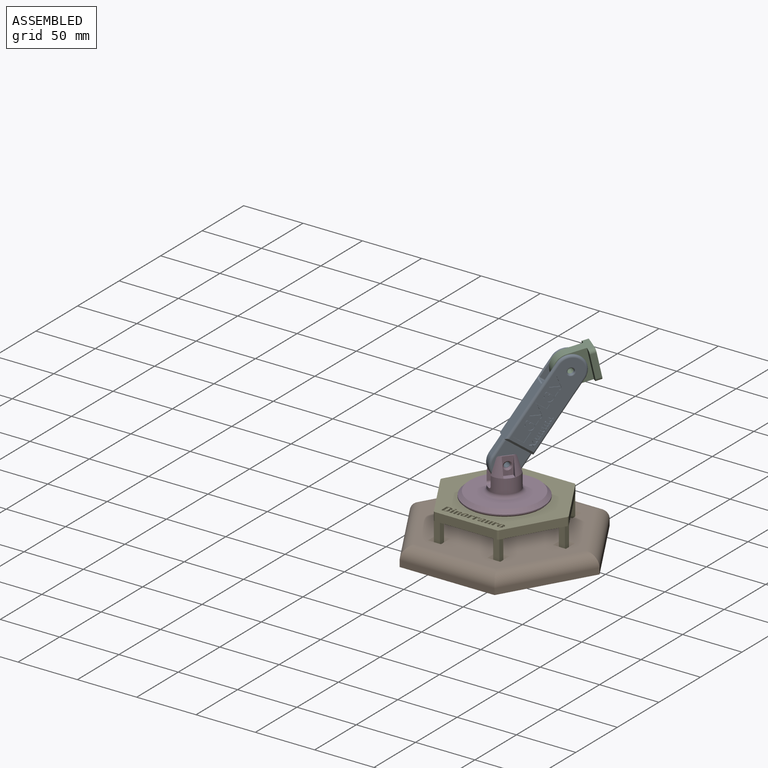
[diagram: assembled view]
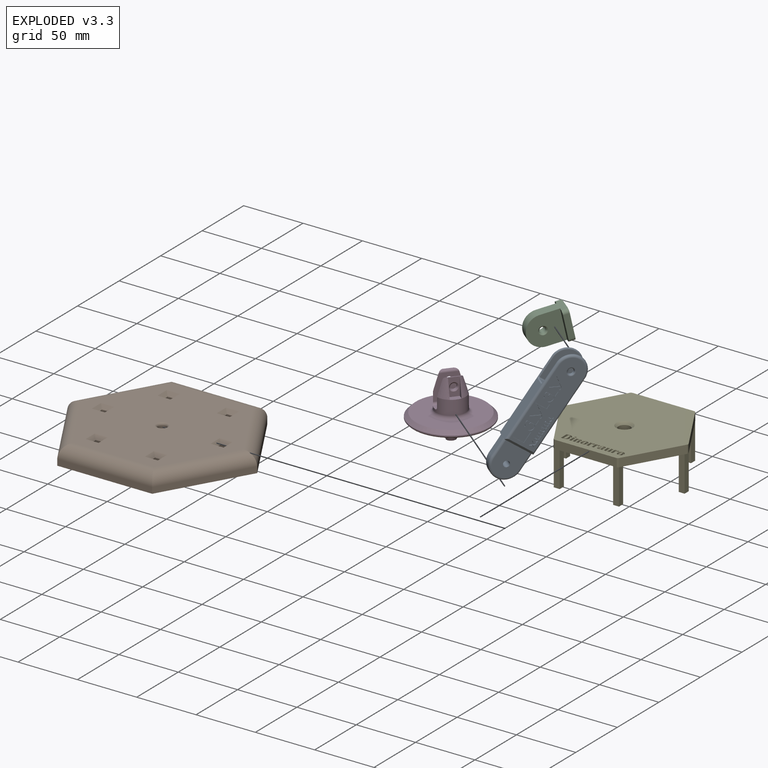
[diagram: exploded view]
GUIDED TOUR — FREECAD ASSEMBLY "Articulated_Artm"

This assembly has 5 components, labeled P0..P4 below (a component is one placed body or linked part; the same part can appear more than once), held together by 4 modeled joints. A joint is a constraint between two components; its type names the relative motion it leaves free:
  FASTENED — locks the two components together rigidly (no relative motion),
  REVOLUTE — leaves rotation about the listed axis free (a hinge).
Axis/direction vectors are unit vectors and 'through' points are millimeter coordinates, both in the assembly's world frame.

MATES
  1. FASTENED [Fixed] "Joint": P1 <-> P4, direction (-1.000, 0.000, 0.000) through (-25.00, -40.80, 0.00) mm
  2. REVOLUTE [Revolute] "Joint001": P3 <-> P4, axis (0.000, 0.000, 1.000) through (0.00, 0.00, 32.50) mm
  3. REVOLUTE [Revolute] "Joint002": P3 <-> P0, axis (-0.778, 0.629, 0.000) through (-4.44, 3.59, 64.73) mm
  4. REVOLUTE [Revolute] "Joint003": P2 <-> P0, axis (0.778, -0.629, 0.000) through (28.79, 35.36, 130.46) mm

ASSEMBLY ORDER
  1. P0 — the base component [order heuristic]
  2. P2 — core [order heuristic]
  3. P3 — core [order heuristic]
  4. P4 [order verified]
  5. P1 [order verified]
Order-tag legend:
  [order verified] — this step's position reverses a verified removal order: the component was checked to insert without passing through the ones already placed.
  [order heuristic] — the first 3 components form the assembly's core: parts whose collision-free extraction could not be verified, listed in mate-graph order.

Of the 5 components, 3 carry a construction recipe — the FreeCAD feature program (sketches with constraints, then the solid features that consume them) that regenerates the part from scratch, quoted from this document or from the linked companion document it references; the rest are supplied as boundary geometry only. The tour below walks the components in assembly order: each is shown spotlighted twice — in the assembled view, then in the exploded view, where a leader line traces a displaced component back to its assembled socket (components that stay in place when exploded have no leader line; saturated green if recipe-attached, orange if geometry-only; every other component desaturated gray) — followed by its recipe or geometry summary and the mates that hold it.
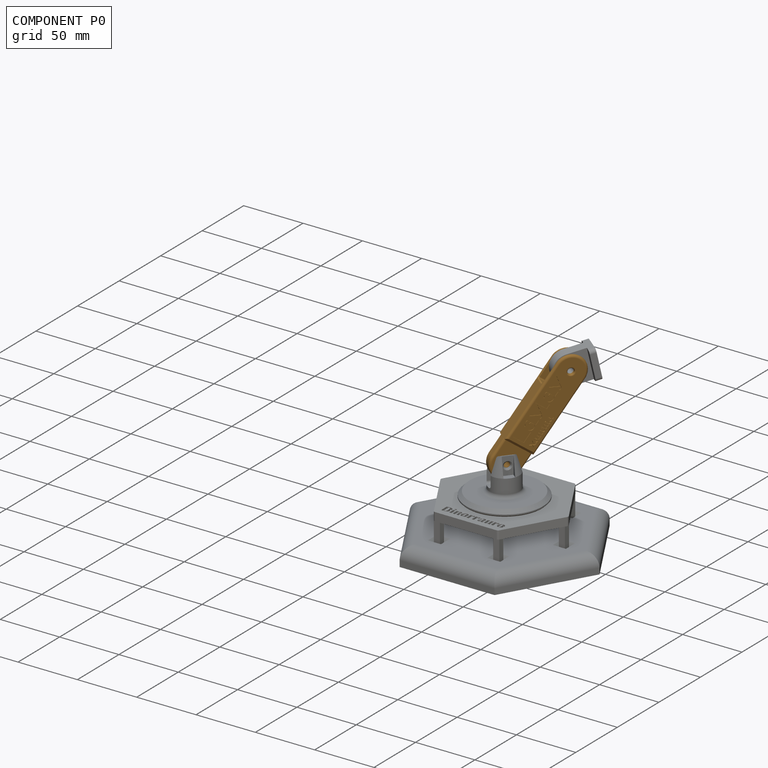
[diagram: component P0 — assembled]
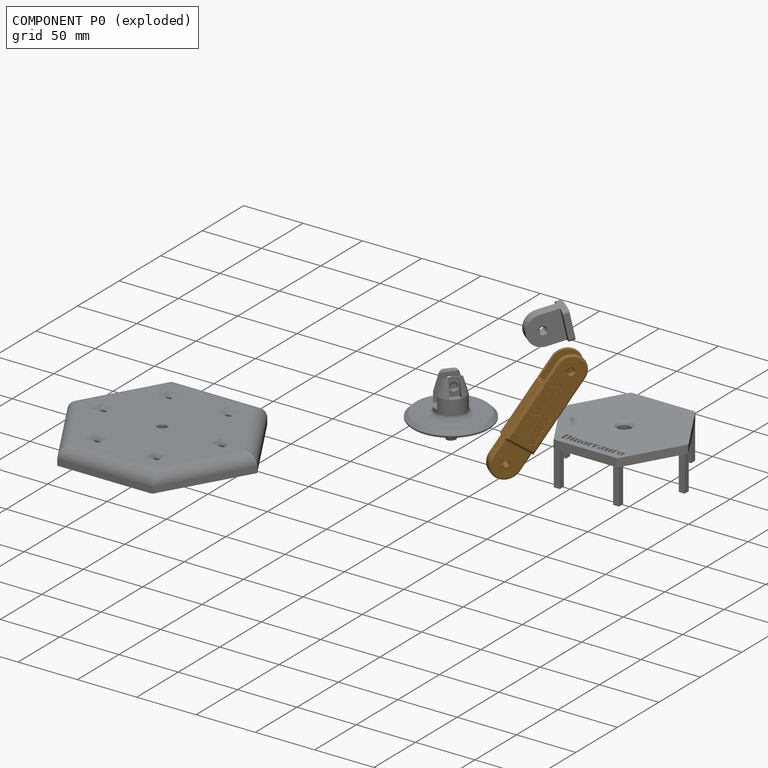
[diagram: component P0 — exploded]
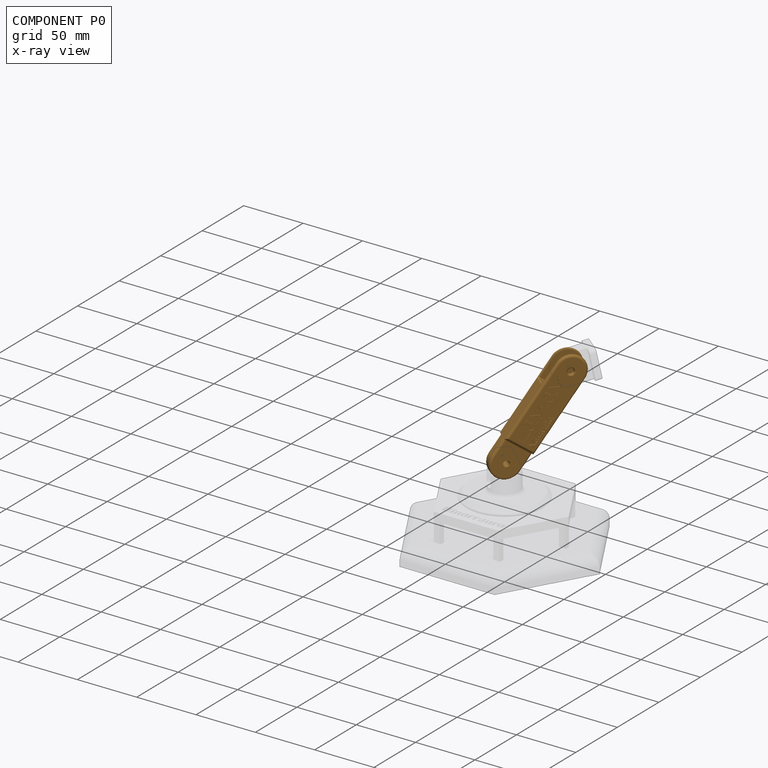
[diagram: component P0 — x-ray view]
COMPONENT P0 — geometry summary ("Arm002"; no construction recipe available for this part):
  bounding box: 90.7 x 60.8 x 52.1 mm
  tessellated surface: 61,146 triangles
  volume: 26161 mm^3 (9% of its bounding box)
Held by: REVOLUTE mate "Joint002" to P3; REVOLUTE mate "Joint003" to P2.
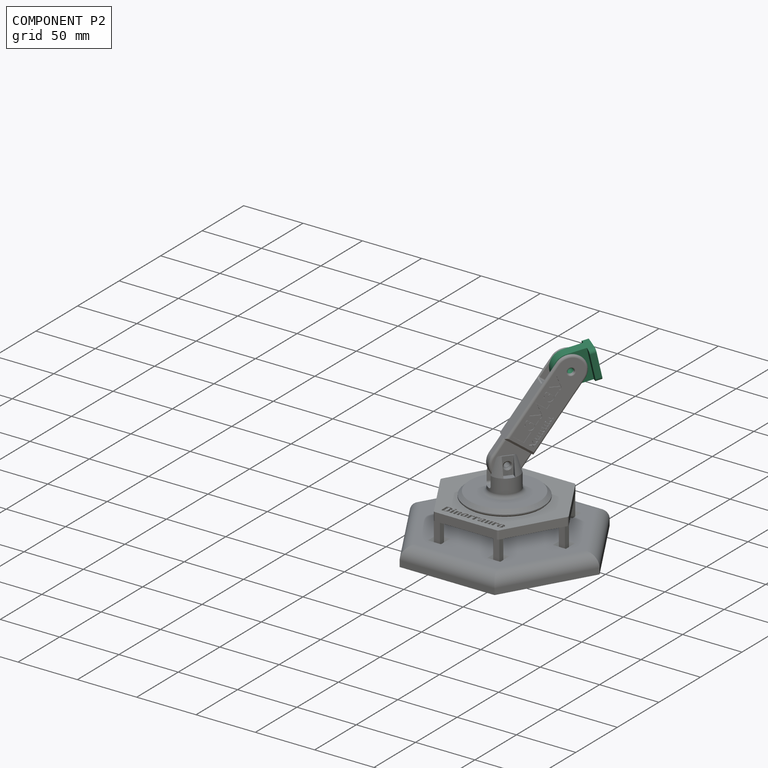
[diagram: component P2 — assembled]
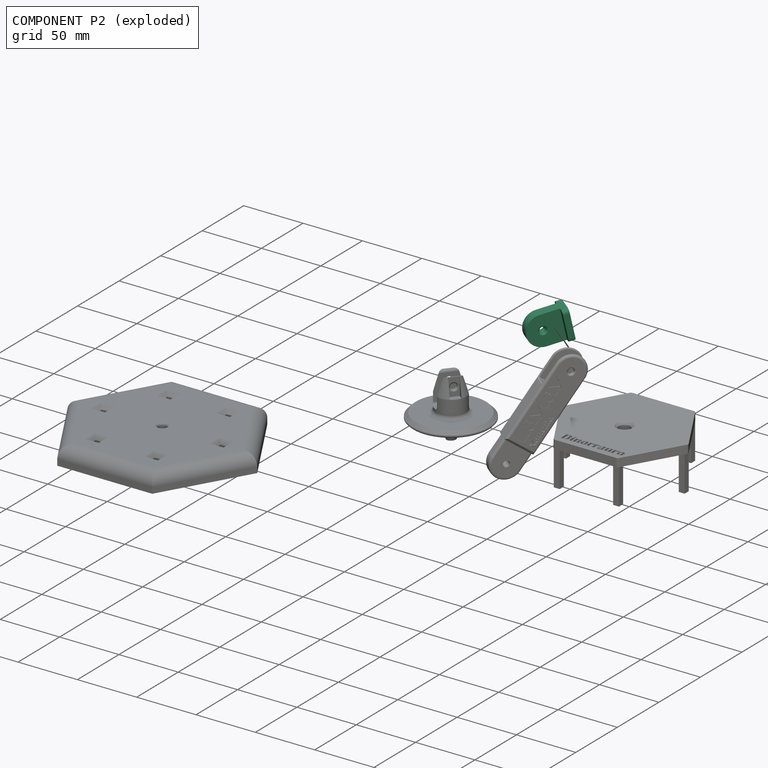
[diagram: component P2 — exploded]
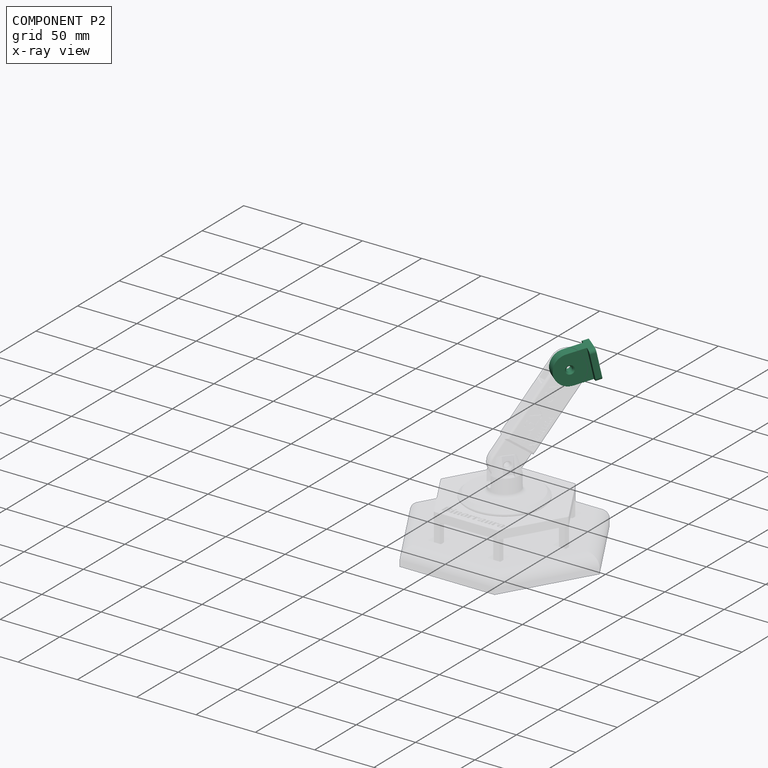
[diagram: component P2 — x-ray view]
COMPONENT P2 — recipe-attached ("Cam_Mount001", modeled in this document).
Held by: REVOLUTE mate "Joint003" to P0.
Construction recipe (the document's own serialized feature program — sketch geometry with constraints, then the solid features built on it; lengths are millimeters unless a unit is written):

FEATURE [Sketcher::SketchObject] Sketch017
  ArcFitTolerance = 1e-06
  AttachmentSupport = -> [YZ_Plane004]
  FullyConstrained = true
  MakeInternals = false
  MapMode = 5
  Placement = pos=(0,0,0) rot=(0.57735,0.57735,0.57735;2.0944rad)
  sketch-geometry (5):
    g0: Circle [constr] CenterX=0 CenterY=0 CenterZ=0 NormalX=0 NormalY=0 NormalZ=1 AngleXU=0 Radius=12.5
    g1: ArcOfCircle CenterX=0 CenterY=0 CenterZ=0 NormalX=0 NormalY=0 NormalZ=1 AngleXU=0 Radius=12.5 StartAngle=3.14159 EndAngle=6.28319
    g2: LineSegment StartX=-12.5 StartY=1.20884e-08 StartZ=0 EndX=-12.5 EndY=15 EndZ=0
    g3: LineSegment StartX=12.5 StartY=4.31804e-06 StartZ=0 EndX=12.5 EndY=15 EndZ=0
    g4: LineSegment StartX=-12.5 StartY=15 StartZ=0 EndX=12.5 EndY=15 EndZ=0
  constraints (14):
    c: Diameter(g0) = 25
    c: Coincident(g0,g-1)
    c: Angle(g1) = 3.14159
    c: Coincident(g1,g0)
    c: PointOnObject(g1,g0)
    c: Distance(g2) = 15
    c: Coincident(g2,g1)
    c: Vertical(g2)
    c: Tangent(g2,g0)
    c: Distance(g3) = 15
    c: Coincident(g3,g1)
    c: Vertical(g3)
    c: Coincident(g4,g2)
    c: Coincident(g4,g3)
FEATURE [PartDesign::Pad] Pad008
  Direction = (1,0,0)
  Length = 9
  Length2 = 10
  Placement = pos=(0,0,0) rot=(1,1,1;2.0944rad)
  Profile = -> Sketch017
  ReferenceAxis = -> Sketch017 [N_Axis]
  Refine = true
  Suppressed = false
  Type = 0
FEATURE [Sketcher::SketchObject] Sketch018
  ArcFitTolerance = 1e-06
  AttachmentSupport = -> [Pad008]
  FullyConstrained = true
  MakeInternals = false
  MapMode = 5
  Placement = pos=(0,-2.58357e-06,15) rot=(0,0,-1;1.5708rad)
  sketch-geometry (6):
    g0: LineSegment [constr] StartX=0 StartY=0 StartZ=0 EndX=0 EndY=4.5 EndZ=0
    g1: LineSegment StartX=-12.5 StartY=-5.5 StartZ=0 EndX=12.5 EndY=-5.5 EndZ=0
    g2: LineSegment StartX=12.5 StartY=-5.5 StartZ=0 EndX=12.5 EndY=14.5 EndZ=0
    g3: LineSegment StartX=12.5 StartY=14.5 StartZ=0 EndX=-12.5 EndY=14.5 EndZ=0
    g4: LineSegment StartX=-12.5 StartY=14.5 StartZ=0 EndX=-12.5 EndY=-5.5 EndZ=0
    g5: GeomPoint [constr] X=0 Y=4.5 Z=0
  constraints (15):
    c: Distance(g0) = 4.5
    c: Coincident(g0,g-1)
    c: PointOnObject(g0,g-2)
    c: Coincident(g1,g2)
    c: Coincident(g2,g3)
    c: Coincident(g3,g4)
    c: Coincident(g4,g1)
    c: Horizontal(g1)
    c: Horizontal(g3)
    c: Vertical(g2)
    c: Vertical(g4)
    c: Symmetric(g3,g1,g5)
    c: Distance(g2,g4) = 25
    c: Distance(g1,g3) = 20
    c: Coincident(g5,g0)
FEATURE [PartDesign::Pad] Pad009
  BaseFeature = -> Pad008
  Direction = (0,-1.72238e-07,1)
  Length = 5
  Length2 = 10
  Placement = pos=(0,0,0) rot=(1,1,1;2.0944rad)
  Profile = -> Sketch018
  ReferenceAxis = -> Sketch018 [N_Axis]
  Refine = true
  Suppressed = false
  Type = 0
FEATURE [PartDesign::Fillet] Fillet011
  Base = -> Pad009 [Edge14,Edge18,Edge19,Edge13]
  BaseFeature = -> Pad009
  Placement = pos=(0,0,0) rot=(1,1,1;2.0944rad)
  Radius = 3
  Refine = true
  SupportTransform = false
  Suppressed = false
  UseAllEdges = false
FEATURE [Sketcher::SketchObject] Sketch019
  ArcFitTolerance = 1e-06
  AttachmentSupport = -> [Fillet011]
  FullyConstrained = true
  MakeInternals = false
  MapMode = 5
  Placement = pos=(0,0,0) rot=(0.57735,0.57735,-0.57735;4.18879rad)
  sketch-geometry (1):
    g0: Circle CenterX=0 CenterY=0 CenterZ=0 NormalX=0 NormalY=0 NormalZ=1 AngleXU=0 Radius=2.5
  constraints (2):
    c: Diameter(g0) = 5
    c: Coincident(g0,g-1)
FEATURE [PartDesign::Pocket] Pocket009
  BaseFeature = -> Fillet011
  Direction = (1,0,0)
  Length = 13
  Length2 = 5
  Placement = pos=(0,0,0) rot=(1,1,1;2.0944rad)
  Profile = -> Sketch019
  ReferenceAxis = -> Sketch019 [N_Axis]
  Refine = true
  Suppressed = false
  Type = 0
FEATURE [Sketcher::SketchObject] Sketch020
  ArcFitTolerance = 1e-06
  AttachmentSupport = -> [Pocket009]
  FullyConstrained = true
  MakeInternals = false
  MapMode = 5
  Placement = pos=(0,-3.44476e-06,20) rot=(0,0,-1;1.5708rad)
  sketch-geometry (7):
    g0: LineSegment [constr] StartX=0 StartY=0 StartZ=0 EndX=0 EndY=4.5 EndZ=0
    g1: LineSegment [constr] StartX=-12.5 StartY=-5.5 StartZ=0 EndX=12.5 EndY=-5.5 EndZ=0
    g2: LineSegment [constr] StartX=12.5 StartY=-5.5 StartZ=0 EndX=12.5 EndY=14.5 EndZ=0
    g3: LineSegment [constr] StartX=12.5 StartY=14.5 StartZ=0 EndX=-12.5 EndY=14.5 EndZ=0
    g4: LineSegment [constr] StartX=-12.5 StartY=14.5 StartZ=0 EndX=-12.5 EndY=-5.5 EndZ=0
    g5: GeomPoint [constr] X=0 Y=4.5 Z=0
    g6: Circle CenterX=0 CenterY=4.5 CenterZ=0 NormalX=0 NormalY=0 NormalZ=1 AngleXU=0 Radius=1.5
  constraints (17):
    c: Distance(g0) = 4.5
    c: Coincident(g0,g-1)
    c: PointOnObject(g0,g-2)
    c: Coincident(g1,g2)
    c: Coincident(g2,g3)
    c: Coincident(g3,g4)
    c: Coincident(g4,g1)
    c: Horizontal(g1)
    c: Horizontal(g3)
    c: Vertical(g2)
    c: Vertical(g4)
    c: Symmetric(g3,g1,g5)
    c: Distance(g2,g4) = 25
    c: Distance(g1,g3) = 20
    c: Coincident(g5,g0)
    c: Diameter(g6) = 3
    c: Coincident(g6,g0)
FEATURE [PartDesign::Pocket] Pocket010
  BaseFeature = -> Pocket009
  Direction = (0,1.72238e-07,-1)
  Length = 5
  Length2 = 5
  Placement = pos=(0,0,0) rot=(1,1,1;2.0944rad)
  Profile = -> Sketch020
  ReferenceAxis = -> Sketch020 [N_Axis]
  Refine = true
  Suppressed = false
  Type = 0
FEATURE [PartDesign::Chamfer] Chamfer008
  Angle = 45
  Base = -> Pocket010 [Edge23]
  BaseFeature = -> Pocket010
  ChamferType = 0
  FlipDirection = false
  Placement = pos=(0,0,0) rot=(1,1,1;2.0944rad)
  Refine = true
  Size = 1
  Size2 = 1
  SupportTransform = false
  Suppressed = false
  UseAllEdges = false
FEATURE [PartDesign::Chamfer] Chamfer009
  Angle = 45
  Base = -> Chamfer008 [Edge43,Edge45]
  BaseFeature = -> Chamfer008
  ChamferType = 0
  FlipDirection = false
  Placement = pos=(0,0,0) rot=(1,1,1;2.0944rad)
  Refine = true
  Size = 1
  Size2 = 1
  SupportTransform = false
  Suppressed = false
  UseAllEdges = false
FEATURE [PartDesign::Body] Body004  label="Cam_Mount"
  AllowCompound = false
  Group = -> [Sketch017,Pad008,Sketch018,Pad009,Fillet011,Sketch019,Pocket009,Sketch020,Pocket010,Chamfer008,Chamfer009]
  Origin = -> Origin004
  Placement = pos=(-4.5,0,140) rot=(0,0,1;0rad)
  Tip = -> Chamfer009
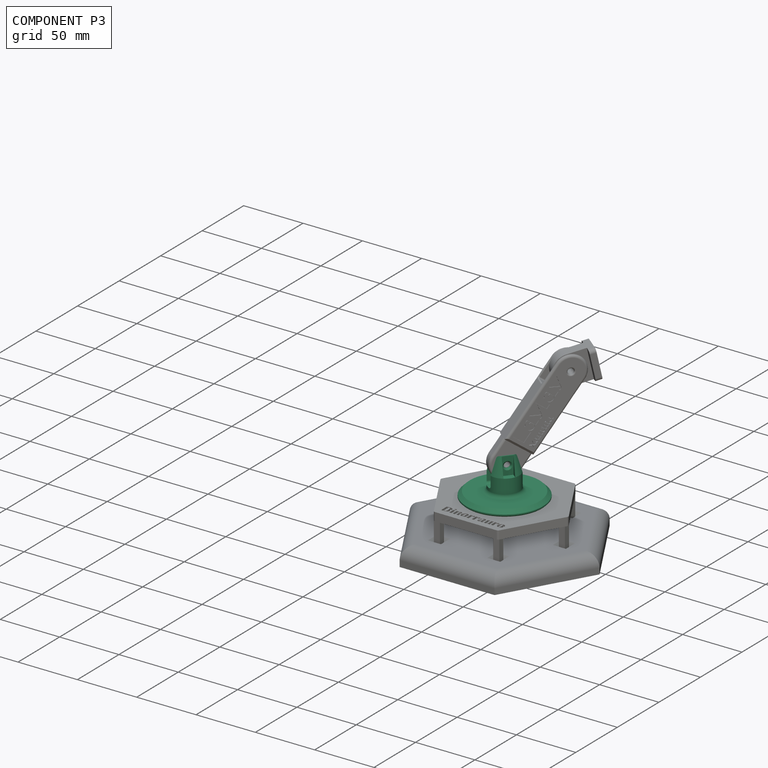
[diagram: component P3 — assembled]
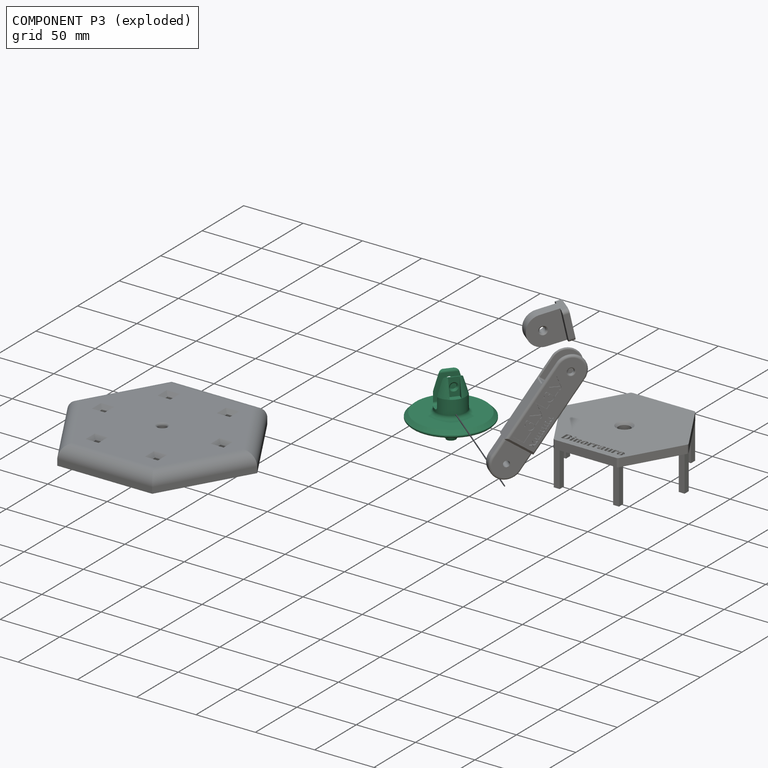
[diagram: component P3 — exploded]
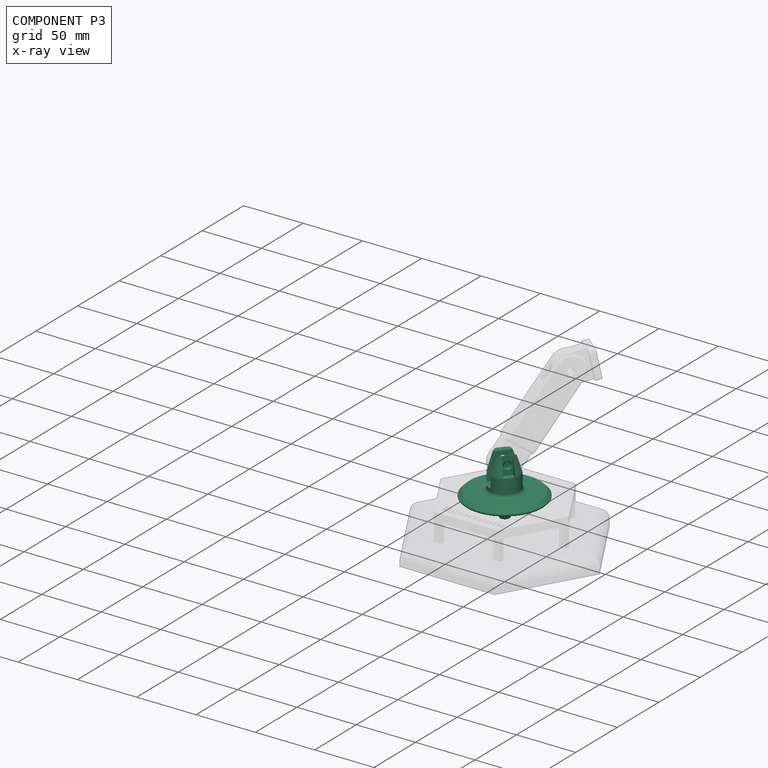
[diagram: component P3 — x-ray view]
COMPONENT P3 — recipe-attached ("Shoulder001", modeled in this document).
Held by: REVOLUTE mate "Joint001" to P4; REVOLUTE mate "Joint002" to P0.
Construction recipe (the document's own serialized feature program — sketch geometry with constraints, then the solid features built on it; lengths are millimeters unless a unit is written):

FEATURE [Sketcher::SketchObject] Sketch005
  ArcFitTolerance = 1e-06
  AttachmentSupport = -> [XY_Plane002]
  FullyConstrained = true
  MakeInternals = false
  MapMode = 5
  sketch-geometry (1):
    g0: Circle CenterX=0 CenterY=0 CenterZ=0 NormalX=0 NormalY=0 NormalZ=1 AngleXU=0 Radius=4
  constraints (2):
    c: Diameter(g0) = 8
    c: Coincident(g0,g-1)
FEATURE [PartDesign::Pad] Pad003
  Direction = (0,0,1)
  Length = 10
  Length2 = 10
  Profile = -> Sketch005
  ReferenceAxis = -> Sketch005 [N_Axis]
  Refine = true
  Suppressed = false
  Type = 0
FEATURE [Sketcher::SketchObject] Sketch006
  ArcFitTolerance = 1e-06
  AttachmentSupport = -> [Pad003]
  FullyConstrained = true
  MakeInternals = false
  MapMode = 5
  Placement = pos=(0,0,0) rot=(1,0,0;3.14159rad)
  sketch-geometry (10):
    g0: Circle [constr] CenterX=0 CenterY=0 CenterZ=0 NormalX=0 NormalY=0 NormalZ=1 AngleXU=0 Radius=6
    g1: LineSegment [constr] StartX=4.47214 StartY=-4 StartZ=0 EndX=4.47214 EndY=4 EndZ=0
    g2: LineSegment [constr] StartX=4.47214 StartY=4 StartZ=0 EndX=-4.47214 EndY=4 EndZ=0
    g3: LineSegment [constr] StartX=-4.47214 StartY=4 StartZ=0 EndX=-4.47214 EndY=-4 EndZ=0
    g4: LineSegment [constr] StartX=-4.47214 StartY=-4 StartZ=0 EndX=4.47214 EndY=-4 EndZ=0
    g5: GeomPoint [constr] X=0 Y=0 Z=0
    g6: ArcOfCircle CenterX=0 CenterY=2e-16 CenterZ=0 NormalX=0 NormalY=0 NormalZ=1 AngleXU=0 Radius=6 StartAngle=2.41186 EndAngle=3.87132
    g7: ArcOfCircle CenterX=0 CenterY=2e-16 CenterZ=0 NormalX=0 NormalY=0 NormalZ=1 AngleXU=0 Radius=6 StartAngle=5.55346 EndAngle=7.01291
    g8: LineSegment StartX=-4.47214 StartY=4 StartZ=0 EndX=4.47214 EndY=4 EndZ=0
    g9: LineSegment StartX=-4.47214 StartY=-4 StartZ=0 EndX=4.47214 EndY=-4 EndZ=0
  constraints (24):
    c: Diameter(g0) = 12
    c: Coincident(g0,g-1)
    c: Coincident(g1,g2)
    c: Coincident(g2,g3)
    c: Coincident(g3,g4)
    c: Coincident(g4,g1)
    c: Vertical(g1)
    c: Vertical(g3)
    c: Horizontal(g2)
    c: Horizontal(g4)
    c: Symmetric(g3,g1,g5)
    c: Coincident(g5,g0)
    c: PointOnObject(g2,g0)
    c: DistanceY(g3,g3) = 8
    c: Coincident(g7,g6)
    c: Coincident(g7,g1)
    c: Coincident(g7,g1)
    c: Coincident(g9,g6)
    c: Coincident(g9,g1)
    c: Horizontal(g9)
    c: Coincident(g2,g6)
    c: Coincident(g2,g8)
    c: Coincident(g1,g8)
    c: Radius(g6) = 6
FEATURE [PartDesign::Pad] Pad004
  BaseFeature = -> Pad003
  Direction = (0,0,-1)
  Length = 5
  Length2 = 10
  Profile = -> Sketch006
  ReferenceAxis = -> Sketch006 [N_Axis]
  Refine = true
  Suppressed = false
  Type = 0
FEATURE [PartDesign::Chamfer] Chamfer002
  Angle = 26
  Base = -> Pad004 [Edge19,Edge16]
  BaseFeature = -> Pad004
  ChamferType = 2
  FlipDirection = false
  Refine = true
  Size = 4
  Size2 = 1
  SupportTransform = false
  Suppressed = false
  UseAllEdges = false
FEATURE [Sketcher::SketchObject] Sketch007
  ArcFitTolerance = 1e-06
  AttachmentSupport = -> [Chamfer002]
  FullyConstrained = true
  MakeInternals = false
  MapMode = 5
  Placement = pos=(0,0,-5) rot=(1,0,0;3.14159rad)
  sketch-geometry (5):
    g0: LineSegment StartX=-1 StartY=-4.5 StartZ=0 EndX=1 EndY=-4.5 EndZ=0
    g1: LineSegment StartX=1 StartY=-4.5 StartZ=0 EndX=1 EndY=4.5 EndZ=0
    g2: LineSegment StartX=1 StartY=4.5 StartZ=0 EndX=-1 EndY=4.5 EndZ=0
    g3: LineSegment StartX=-1 StartY=4.5 StartZ=0 EndX=-1 EndY=-4.5 EndZ=0
    g4: GeomPoint [constr] X=0 Y=0 Z=0
  constraints (12):
    c: Coincident(g0,g1)
    c: Coincident(g1,g2)
    c: Coincident(g2,g3)
    c: Coincident(g3,g0)
    c: Horizontal(g0)
    c: Horizontal(g2)
    c: Vertical(g1)
    c: Vertical(g3)
    c: Symmetric(g2,g0,g4)
    c: Distance(g1,g3) = 2
    c: Distance(g0,g2) = 9
    c: Coincident(g4,g-1)
FEATURE [PartDesign::Pocket] Pocket002
  BaseFeature = -> Chamfer002
  Direction = (0,0,1)
  Length = 12
  Length2 = 5
  Profile = -> Sketch007
  ReferenceAxis = -> Sketch007 [N_Axis]
  Refine = true
  Suppressed = false
  Type = 0
FEATURE [Sketcher::SketchObject] Sketch008
  ArcFitTolerance = 1e-06
  AttachmentSupport = -> [Pocket002]
  FullyConstrained = true
  MakeInternals = false
  MapMode = 5
  Placement = pos=(0,0,10) rot=(0,0,1;0rad)
  sketch-geometry (1):
    g0: Circle CenterX=0 CenterY=0 CenterZ=0 NormalX=0 NormalY=0 NormalZ=1 AngleXU=0 Radius=32.5
  constraints (2):
    c: Diameter(g0) = 65
    c: Coincident(g0,g-1)
FEATURE [PartDesign::Pad] Pad005
  BaseFeature = -> Pocket002
  Direction = (0,0,1)
  Length = 5
  Length2 = 10
  Profile = -> Sketch008
  ReferenceAxis = -> Sketch008 [N_Axis]
  Refine = true
  Suppressed = false
  Type = 0
FEATURE [PartDesign::Chamfer] Chamfer003
  Angle = 45
  Base = -> Pad005 [Edge48]
  BaseFeature = -> Pad005
  ChamferType = 0
  FlipDirection = false
  Refine = true
  Size = 3
  Size2 = 1
  SupportTransform = false
  Suppressed = false
  UseAllEdges = false
FEATURE [PartDesign::Chamfer] Chamfer004
  Angle = 45
  Base = -> Chamfer003 [Edge3]
  BaseFeature = -> Chamfer003
  ChamferType = 0
  FlipDirection = false
  Refine = true
  Size = 1
  Size2 = 1
  SupportTransform = false
  Suppressed = false
  UseAllEdges = false
FEATURE [Sketcher::SketchObject] Sketch009
  ArcFitTolerance = 1e-06
  AttachmentSupport = -> [Chamfer004]
  FullyConstrained = true
  MakeInternals = false
  MapMode = 5
  Placement = pos=(0,0,15) rot=(0,0,1;0rad)
  sketch-geometry (1):
    g0: Circle CenterX=0 CenterY=0 CenterZ=0 NormalX=0 NormalY=0 NormalZ=1 AngleXU=0 Radius=12.5
  constraints (2):
    c: Diameter(g0) = 25
    c: Coincident(g0,g-1)
FEATURE [PartDesign::Pad] Pad006
  BaseFeature = -> Chamfer004
  Direction = (0,0,1)
  Length = 30
  Length2 = 10
  Profile = -> Sketch009
  ReferenceAxis = -> Sketch009 [N_Axis]
  Refine = true
  Suppressed = false
  Type = 0
FEATURE [PartDesign::Chamfer] Chamfer005
  Angle = 15
  Base = -> Pad006 [Edge21]
  BaseFeature = -> Pad006
  ChamferType = 2
  FlipDirection = false
  Refine = true
  Size = 15
  Size2 = 1
  SupportTransform = false
  Suppressed = false
  UseAllEdges = false
FEATURE [Sketcher::SketchObject] Sketch010
  ArcFitTolerance = 1e-06
  AttachmentSupport = -> [Chamfer005]
  FullyConstrained = true
  MakeInternals = false
  MapMode = 5
  Placement = pos=(0,0,45) rot=(0,0,1;0rad)
  sketch-geometry (5):
    g0: LineSegment StartX=-5 StartY=-14 StartZ=0 EndX=5 EndY=-14 EndZ=0
    g1: LineSegment StartX=5 StartY=-14 StartZ=0 EndX=5 EndY=14 EndZ=0
    g2: LineSegment StartX=5 StartY=14 StartZ=0 EndX=-5 EndY=14 EndZ=0
    g3: LineSegment StartX=-5 StartY=14 StartZ=0 EndX=-5 EndY=-14 EndZ=0
    g4: GeomPoint [constr] X=0 Y=0 Z=0
  constraints (12):
    c: Coincident(g0,g1)
    c: Coincident(g1,g2)
    c: Coincident(g2,g3)
    c: Coincident(g3,g0)
    c: Horizontal(g0)
    c: Horizontal(g2)
    c: Vertical(g1)
    c: Vertical(g3)
    c: Symmetric(g2,g0,g4)
    c: Distance(g1,g3) = 10
    c: Distance(g0,g2) = 28
    c: Coincident(g4,g-1)
FEATURE [PartDesign::Pocket] Pocket003
  BaseFeature = -> Chamfer005
  Direction = (0,0,-1)
  Length = 25
  Length2 = 5
  Profile = -> Sketch010
  ReferenceAxis = -> Sketch010 [N_Axis]
  Refine = true
  Suppressed = false
  Type = 0
FEATURE [PartDesign::Fillet] Fillet003
  Base = -> Pocket003 [Edge18,Edge17]
  BaseFeature = -> Pocket003
  Radius = 2
  Refine = true
  SupportTransform = false
  Suppressed = false
  UseAllEdges = false
FEATURE [PartDesign::Fillet] Fillet004
  Base = -> Fillet003 [Edge7]
  BaseFeature = -> Fillet003
  Radius = 3
  Refine = true
  SupportTransform = false
  Suppressed = false
  UseAllEdges = false
FEATURE [PartDesign::Fillet] Fillet005
  Base = -> Fillet004 [Edge29,Edge23]
  BaseFeature = -> Fillet004
  Radius = 2
  Refine = true
  SupportTransform = false
  Suppressed = false
  UseAllEdges = false
FEATURE [Sketcher::SketchObject] Sketch011
  ArcFitTolerance = 1e-06
  AttachmentSupport = -> [Fillet005]
  FullyConstrained = true
  MakeInternals = false
  MapMode = 5
  Placement = pos=(0,0,45) rot=(0,0,1;0rad)
  sketch-geometry (10):
    g0: LineSegment StartX=-13.4315 StartY=-4.24781 StartZ=0 EndX=-7.43145 EndY=-4.24781 EndZ=0
    g1: LineSegment StartX=-7.43145 StartY=-4.24781 StartZ=0 EndX=-7.43145 EndY=4.24781 EndZ=0
    g2: LineSegment StartX=-7.43145 StartY=4.24781 StartZ=0 EndX=-13.4315 EndY=4.24781 EndZ=0
    g3: LineSegment StartX=-13.4315 StartY=4.24781 StartZ=0 EndX=-13.4315 EndY=-4.24781 EndZ=0
    g4: GeomPoint [constr] X=-10.4315 Y=0 Z=0
    g5: LineSegment StartX=13.4315 StartY=4.24781 StartZ=0 EndX=7.43145 EndY=4.24781 EndZ=0
    g6: LineSegment StartX=7.43145 StartY=4.24781 StartZ=0 EndX=7.43145 EndY=-4.25219 EndZ=0
    g7: LineSegment StartX=7.43145 StartY=-4.25219 StartZ=0 EndX=13.4315 EndY=-4.25219 EndZ=0
    g8: LineSegment StartX=13.4315 StartY=-4.25219 StartZ=0 EndX=13.4315 EndY=4.24781 EndZ=0
    g9: GeomPoint [constr] X=10.4315 Y=-0.00219 Z=0
  constraints (26):
    c: Coincident(g0,g1)
    c: Coincident(g1,g2)
    c: Coincident(g2,g3)
    c: Coincident(g3,g0)
    c: Horizontal(g0)
    c: Horizontal(g2)
    c: Vertical(g1)
    c: Vertical(g3)
    c: Symmetric(g2,g0,g4)
    c: Distance(g1,g3) = 6
    c: PointOnObject(g4,g-1)
    c: DistanceX(g1) = -7.43145
    c: DistanceY(g1) = 4.24781
    c: Coincident(g5,g6)
    c: Coincident(g6,g7)
    c: Coincident(g7,g8)
    c: Coincident(g8,g5)
    c: Horizontal(g5)
    c: Horizontal(g7)
    c: Vertical(g6)
    c: Vertical(g8)
    c: Symmetric(g7,g5,g9)
    c: Distance(g6,g8) = 6
    c: DistanceX(g5) = 7.43145
    c: DistanceY(g5) = 4.24781
    c: DistanceY(g8,g8) = 8.5
FEATURE [PartDesign::Pocket] Pocket004
  BaseFeature = -> Fillet005
  Direction = (0,0,-1)
  Length = 15
  Length2 = 5
  Profile = -> Sketch011
  ReferenceAxis = -> Sketch011 [N_Axis]
  Refine = true
  Suppressed = false
  Type = 0
FEATURE [Sketcher::SketchObject] Sketch012
  ArcFitTolerance = 1e-06
  AttachmentSupport = -> [Pocket004]
  FullyConstrained = true
  MakeInternals = false
  MapMode = 5
  Placement = pos=(7.43145,0,0) rot=(0.57735,0.57735,0.57735;2.0944rad)
  sketch-geometry (1):
    g0: Circle CenterX=0 CenterY=37.4232 CenterZ=0 NormalX=0 NormalY=0 NormalZ=1 AngleXU=0 Radius=2.5
  constraints (3):
    c: Diameter(g0) = 5
    c: PointOnObject(g0,g-2)
    c: DistanceY(g0) = 37.4232
FEATURE [PartDesign::Pocket] Pocket005
  BaseFeature = -> Pocket004
  Direction = (-1,0,0)
  Length = 23
  Length2 = 5
  Profile = -> Sketch012
  ReferenceAxis = -> Sketch012 [N_Axis]
  Refine = true
  Suppressed = false
  Type = 0
FEATURE [PartDesign::Chamfer] Chamfer006
  Angle = 45
  Base = -> Pocket005 [Edge65,Edge16]
  BaseFeature = -> Pocket005
  ChamferType = 0
  FlipDirection = false
  Refine = true
  Size = 1
  Size2 = 1
  SupportTransform = false
  Suppressed = false
  UseAllEdges = false
FEATURE [PartDesign::Body] Body002  label="Shoulder"
  AllowCompound = false
  Group = -> [Sketch005,Pad003,Sketch006,Pad004,Chamfer002,Sketch007,Pocket002,Sketch008,Pad005,Chamfer003,Chamfer004,Sketch009,Pad006,Chamfer005,Sketch010,Pocket003,Fillet003,Fillet004,Fillet005,Sketch011,Pocket004,Sketch012,Pocket005,Chamfer006]
  Origin = -> Origin002
  Placement = pos=(0,0,27) rot=(0,0,1;0rad)
  Tip = -> Chamfer006
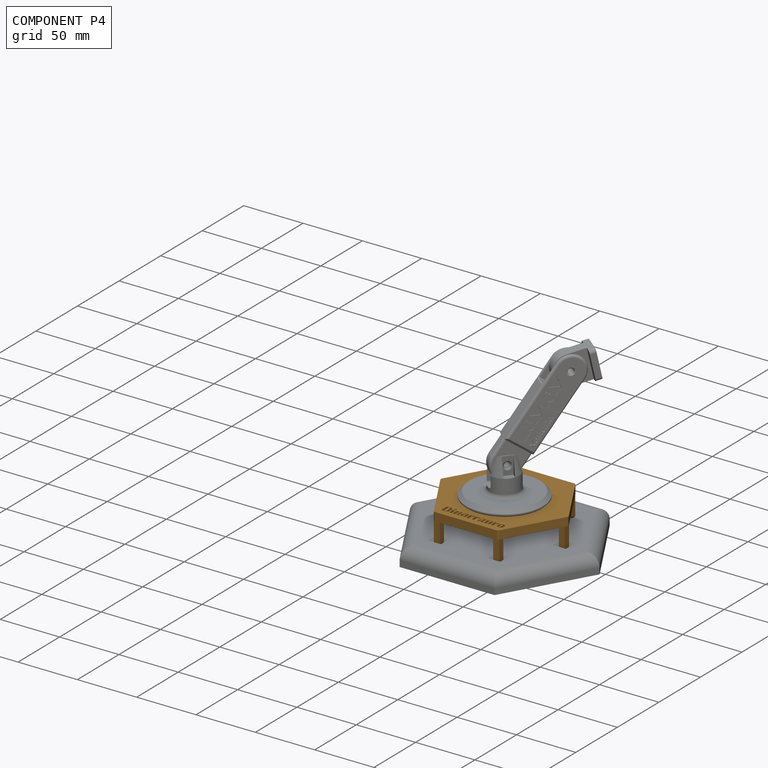
[diagram: component P4 — assembled]
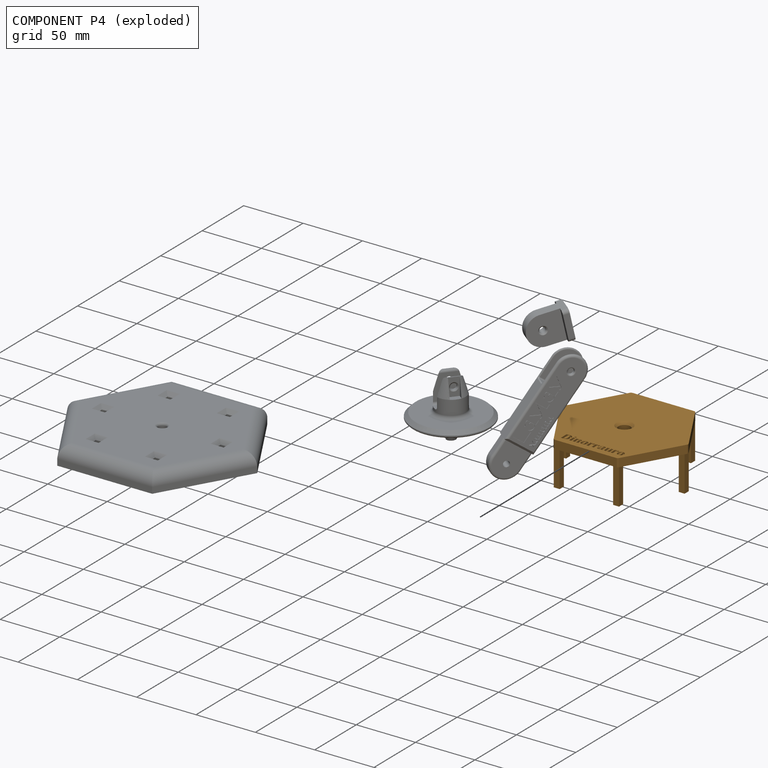
[diagram: component P4 — exploded]
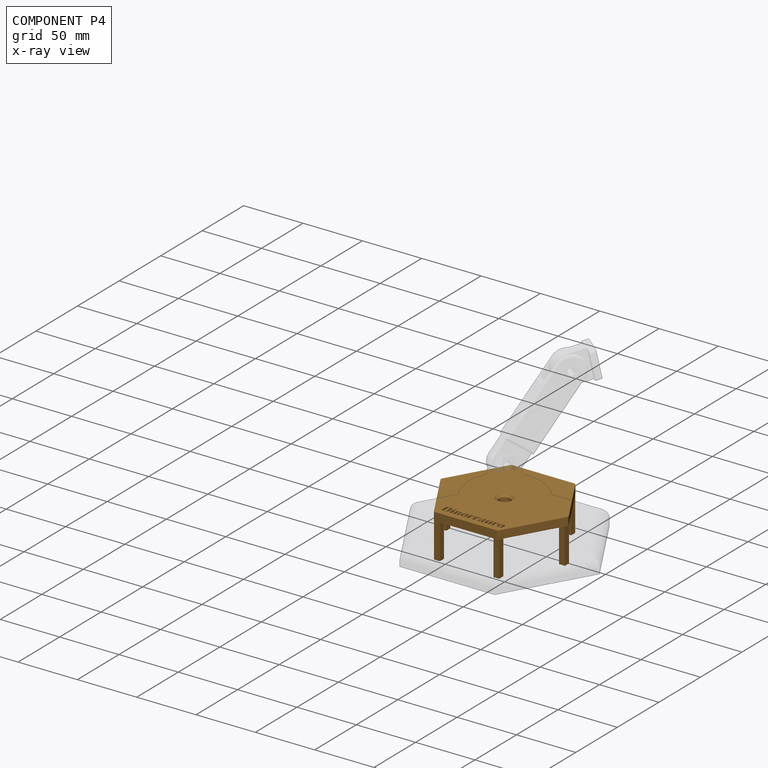
[diagram: component P4 — x-ray view]
COMPONENT P4 — geometry summary ("Swivel001"; no construction recipe available for this part):
  bounding box: 107.4 x 93.5 x 37.0 mm
  tessellated surface: 12,354 triangles
  volume: 56641 mm^3 (15% of its bounding box)
Held by: FASTENED mate "Joint" to P1; REVOLUTE mate "Joint001" to P3.
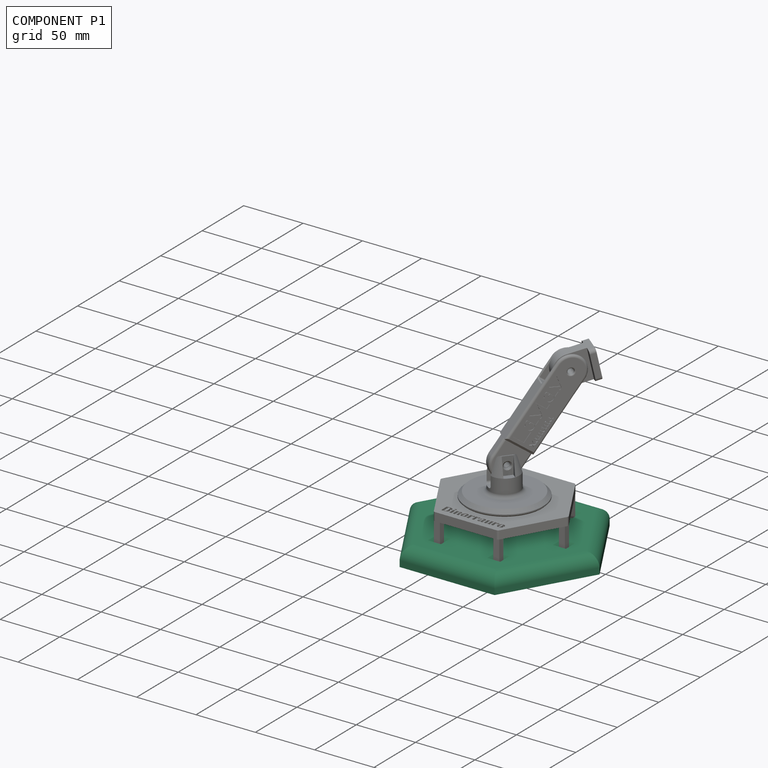
[diagram: component P1 — assembled]
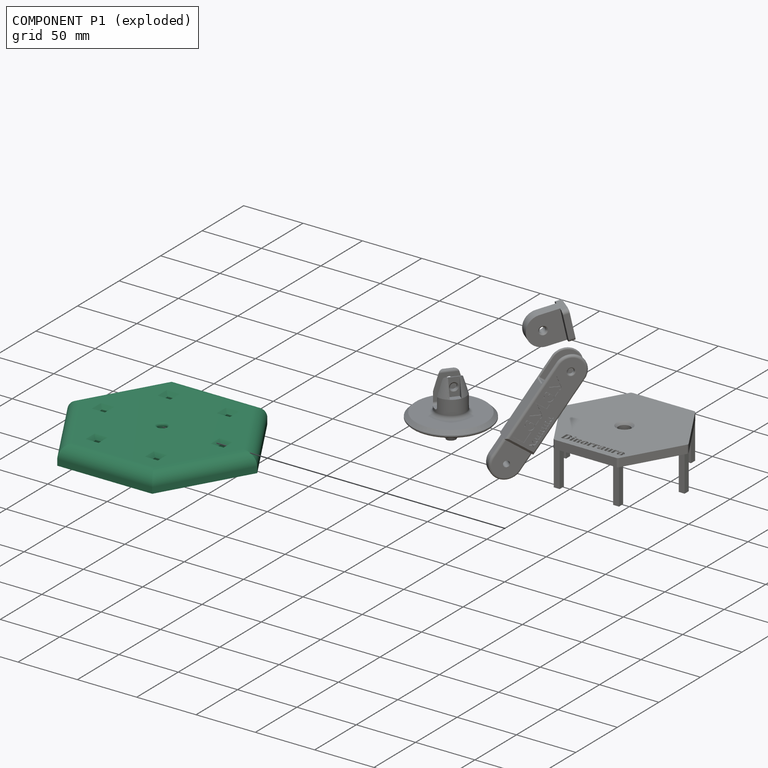
[diagram: component P1 — exploded]
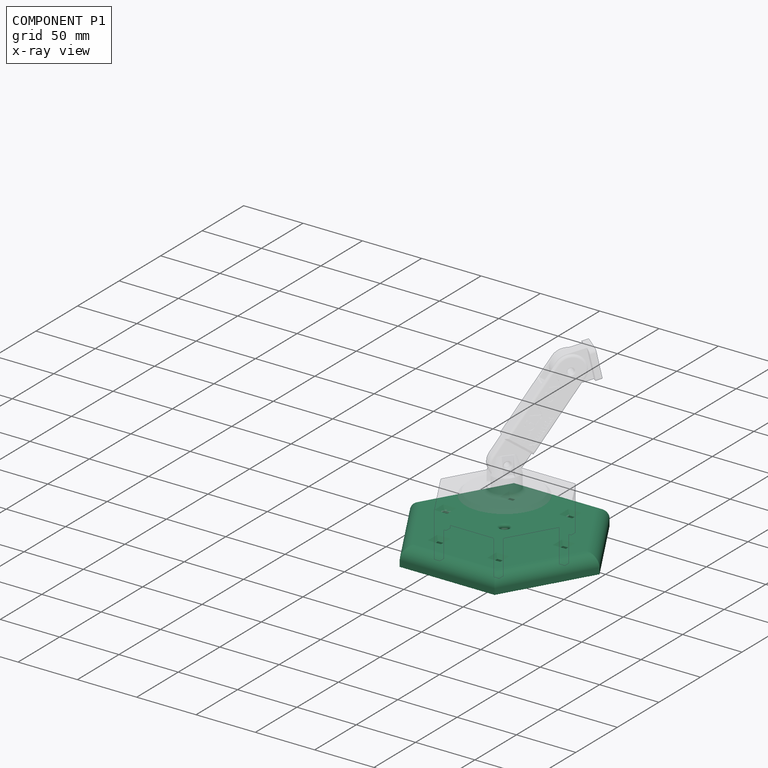
[diagram: component P1 — x-ray view]
COMPONENT P1 — recipe-attached ("Base for Articulated arm001", modeled in this document).
Held by: FASTENED mate "Joint" to P4.
Construction recipe (the document's own serialized feature program — sketch geometry with constraints, then the solid features built on it; lengths are millimeters unless a unit is written):

FEATURE [Sketcher::SketchObject] Sketch
  ArcFitTolerance = 1e-06
  AttachmentSupport = -> [XY_Plane]
  FullyConstrained = true
  MakeInternals = false
  MapMode = 5
  sketch-geometry (7):
    g0: LineSegment StartX=80 StartY=0 StartZ=0 EndX=40 EndY=69.282 EndZ=0
    g1: LineSegment StartX=40 StartY=69.282 StartZ=0 EndX=-40 EndY=69.282 EndZ=0
    g2: LineSegment StartX=-40 StartY=69.282 StartZ=0 EndX=-80 EndY=1.42e-14 EndZ=0
    g3: LineSegment StartX=-80 StartY=9.8e-15 StartZ=0 EndX=-40 EndY=-69.282 EndZ=0
    g4: LineSegment StartX=-40 StartY=-69.282 StartZ=0 EndX=40 EndY=-69.282 EndZ=0
    g5: LineSegment StartX=40 StartY=-69.282 StartZ=0 EndX=80 EndY=0 EndZ=0
    g6: Circle [constr] CenterX=0 CenterY=0 CenterZ=0 NormalX=0 NormalY=0 NormalZ=1 AngleXU=0 Radius=80
  constraints (16):
    c: Coincident(g0,g1)
    c: Coincident(g1,g2)
    c: Coincident(g2,g3)
    c: Coincident(g3,g4)
    c: Coincident(g4,g5)
    c: Coincident(g5,g0)
    c: Equal(g0, g1-g5) x5
    c: PointOnObject(g0,g6)
    c: PointOnObject(g1,g6)
    c: PointOnObject(g2,g6)
    c: PointOnObject(g3,g6)
    c: PointOnObject(g4,g6)
    c: PointOnObject(g5,g6)
    c: Radius(g6) = 80
    c: Coincident(g6,g-1)
    c: PointOnObject(g5,g-1)
FEATURE [PartDesign::Pad] Pad
  Direction = (0,0,1)
  Length = 15
  Length2 = 10
  Profile = -> Sketch
  ReferenceAxis = -> Sketch [N_Axis]
  Refine = true
  Suppressed = false
  Type = 0
FEATURE [Sketcher::SketchObject] Sketch001
  ArcFitTolerance = 1e-06
  AttachmentSupport = -> [Pad]
  FullyConstrained = true
  MakeInternals = false
  MapMode = 5
  Placement = pos=(0,0,15) rot=(0,0,1;0rad)
  sketch-geometry (38):
    g0: Circle CenterX=0 CenterY=0 CenterZ=0 NormalX=0 NormalY=0 NormalZ=1 AngleXU=0 Radius=3.5
    g1: LineSegment [constr] StartX=50 StartY=0 StartZ=0 EndX=25 EndY=43.3013 EndZ=0
    g2: LineSegment [constr] StartX=25 StartY=43.3013 StartZ=0 EndX=-25 EndY=43.3013 EndZ=0
    g3: LineSegment [constr] StartX=-25 StartY=43.3013 StartZ=0 EndX=-50 EndY=-7.1e-15 EndZ=0
    g4: LineSegment [constr] StartX=-50 StartY=-7.1e-15 StartZ=0 EndX=-25 EndY=-43.3013 EndZ=0
    g5: LineSegment [constr] StartX=-25 StartY=-43.3013 StartZ=0 EndX=25 EndY=-43.3013 EndZ=0
    g6: LineSegment [constr] StartX=25 StartY=-43.3013 StartZ=0 EndX=50 EndY=0 EndZ=0
    g7: Circle [constr] CenterX=0 CenterY=0 CenterZ=0 NormalX=0 NormalY=0 NormalZ=1 AngleXU=0 Radius=50
    g8: LineSegment StartX=-27.5 StartY=40.8013 StartZ=0 EndX=-22.5 EndY=40.8013 EndZ=0
    g9: LineSegment StartX=-22.5 StartY=40.8013 StartZ=0 EndX=-22.5 EndY=45.8013 EndZ=0
    g10: LineSegment StartX=-22.5 StartY=45.8013 StartZ=0 EndX=-27.5 EndY=45.8013 EndZ=0
    g11: LineSegment StartX=-27.5 StartY=45.8013 StartZ=0 EndX=-27.5 EndY=40.8013 EndZ=0
    g12: GeomPoint [constr] X=-25 Y=43.3013 Z=0
    g13: LineSegment StartX=22.5 StartY=40.8013 StartZ=0 EndX=27.5 EndY=40.8013 EndZ=0
    g14: LineSegment StartX=27.5 StartY=40.8013 StartZ=0 EndX=27.5 EndY=45.8013 EndZ=0
    g15: LineSegment StartX=27.5 StartY=45.8013 StartZ=0 EndX=22.5 EndY=45.8013 EndZ=0
    g16: LineSegment StartX=22.5 StartY=45.8013 StartZ=0 EndX=22.5 EndY=40.8013 EndZ=0
    g17: GeomPoint [constr] X=25 Y=43.3013 Z=0
    g18: LineSegment StartX=47.5 StartY=-2.5 StartZ=0 EndX=52.5 EndY=-2.5 EndZ=0
    g19: LineSegment StartX=52.5 StartY=-2.5 StartZ=0 EndX=52.5 EndY=2.5 EndZ=0
    g20: LineSegment StartX=52.5 StartY=2.5 StartZ=0 EndX=47.5 EndY=2.5 EndZ=0
    g21: LineSegment StartX=47.5 StartY=2.5 StartZ=0 EndX=47.5 EndY=-2.5 EndZ=0
    g22: GeomPoint [constr] X=50 Y=0 Z=0
    g23: LineSegment StartX=27.5 StartY=-40.8013 StartZ=0 EndX=22.5 EndY=-40.8013 EndZ=0
    g24: LineSegment StartX=22.5 StartY=-40.8013 StartZ=0 EndX=22.5 EndY=-45.8013 EndZ=0
    g25: LineSegment StartX=22.5 StartY=-45.8013 StartZ=0 EndX=27.5 EndY=-45.8013 EndZ=0
    g26: LineSegment StartX=27.5 StartY=-45.8013 StartZ=0 EndX=27.5 EndY=-40.8013 EndZ=0
    g27: GeomPoint [constr] X=25 Y=-43.3013 Z=0
    g28: LineSegment StartX=-22.5 StartY=-40.8013 StartZ=0 EndX=-27.5 EndY=-40.8013 EndZ=0
    g29: LineSegment StartX=-27.5 StartY=-40.8013 StartZ=0 EndX=-27.5 EndY=-45.8013 EndZ=0
    g30: LineSegment StartX=-27.5 StartY=-45.8013 StartZ=0 EndX=-22.5 EndY=-45.8013 EndZ=0
    g31: LineSegment StartX=-22.5 StartY=-45.8013 StartZ=0 EndX=-22.5 EndY=-40.8013 EndZ=0
    g32: GeomPoint [constr] X=-25 Y=-43.3013 Z=0
    g33: LineSegment StartX=-47.5 StartY=2.5 StartZ=0 EndX=-52.5 EndY=2.5 EndZ=0
    g34: LineSegment StartX=-52.5 StartY=2.5 StartZ=0 EndX=-52.5 EndY=-2.5 EndZ=0
    g35: LineSegment StartX=-52.5 StartY=-2.5 StartZ=0 EndX=-47.5 EndY=-2.5 EndZ=0
    g36: LineSegment StartX=-47.5 StartY=-2.5 StartZ=0 EndX=-47.5 EndY=2.5 EndZ=0
    g37: GeomPoint [constr] X=-50 Y=0 Z=0
  constraints (93):
    c: Diameter(g0) = 7
    c: Coincident(g0,g-1)
    c: Coincident(g1,g2)
    c: Coincident(g2,g3)
    c: Coincident(g3,g4)
    c: Coincident(g4,g5)
    c: Coincident(g5,g6)
    c: Coincident(g6,g1)
    c: Equal(g1, g2-g6) x5
    c: PointOnObject(g1,g7)
    c: PointOnObject(g2,g7)
    c: PointOnObject(g3,g7)
    c: PointOnObject(g4,g7)
    c: PointOnObject(g5,g7)
    c: PointOnObject(g6,g7)
    c: Radius(g7) = 50
    c: Coincident(g7,g0)
    c: PointOnObject(g6,g-1)
    c: Coincident(g8,g9)
    c: Coincident(g9,g10)
    c: Coincident(g10,g11)
    c: Coincident(g11,g8)
    c: Horizontal(g8)
    c: Horizontal(g10)
    c: Vertical(g9)
    c: Vertical(g11)
    c: Symmetric(g10,g8,g12)
    c: Distance(g9,g11) = 5
    c: Distance(g8,g10) = 5
    c: Coincident(g12,g2)
    c: Coincident(g13,g14)
    c: Coincident(g14,g15)
    c: Coincident(g15,g16)
    c: Coincident(g16,g13)
    c: Horizontal(g13)
    c: Horizontal(g15)
    c: Vertical(g14)
    c: Vertical(g16)
    c: Symmetric(g15,g13,g17)
    c: Distance(g14,g16) = 5
    c: Distance(g13,g15) = 5
    c: Coincident(g17,g1)
    c: Coincident(g18,g19)
    c: Coincident(g19,g20)
    c: Coincident(g20,g21)
    c: Coincident(g21,g18)
    c: Horizontal(g18)
    c: Horizontal(g20)
    c: Vertical(g19)
    c: Vertical(g21)
    c: Symmetric(g20,g18,g22)
    c: Distance(g19,g21) = 5
    c: Distance(g18,g20) = 5
    c: Coincident(g22,g1)
    c: Coincident(g23,g24)
    c: Coincident(g24,g25)
    c: Coincident(g25,g26)
    c: Coincident(g26,g23)
    c: Horizontal(g23)
    c: Horizontal(g25)
    c: Vertical(g24)
    c: Vertical(g26)
    c: Symmetric(g25,g23,g27)
    c: Distance(g24,g26) = 5
    c: Distance(g23,g25) = 5
    c: Coincident(g28,g29)
    c: Coincident(g29,g30)
    c: Coincident(g30,g31)
    c: Coincident(g31,g28)
    c: Horizontal(g28)
    c: Horizontal(g30)
    c: Vertical(g29)
    c: Vertical(g31)
    c: Symmetric(g30,g28,g32)
    c: Distance(g29,g31) = 5
    c: Distance(g28,g30) = 5
    c: Coincident(g33,g34)
    c: Coincident(g34,g35)
    c: Coincident(g35,g36)
    c: Coincident(g36,g33)
    c: Horizontal(g33)
    c: Horizontal(g35)
    c: Vertical(g34)
    c: Vertical(g36)
    c: Symmetric(g35,g33,g37)
    c: Distance(g34,g36) = 5
    c: Distance(g33,g35) = 5
    c: DistanceX(g35) = -47.5
    c: DistanceY(g35) = -2.5
    c: DistanceX(g28) = -22.5
    c: DistanceY(g28) = -40.8013
    c: DistanceX(g23) = 22.5
    c: DistanceY(g23) = -40.8013
FEATURE [PartDesign::Pocket] Pocket
  BaseFeature = -> Pad
  Direction = (0,0,-1)
  Length = 15
  Length2 = 5
  Profile = -> Sketch001
  ReferenceAxis = -> Sketch001 [N_Axis]
  Refine = true
  Suppressed = false
  Type = 0
FEATURE [PartDesign::Fillet] Fillet
  Base = -> Pocket [Edge39,Edge41,Edge40,Edge10,Edge4,Edge7]
  BaseFeature = -> Pocket
  Radius = 10
  Refine = true
  SupportTransform = false
  Suppressed = false
  UseAllEdges = false
FEATURE [PartDesign::Chamfer] Chamfer
  Angle = 45
  Base = -> Fillet [Edge50,Edge53,Edge52,Edge51,Edge56,Edge54,Edge57,Edge55,Edge67,Edge69,Edge68,Edge70,Edge73,Edge71,Edge74,Edge72,Edge58,Edge60,Edge59,Edge61,Edge63,Edge65,Edge64,Edge66]
  BaseFeature = -> Fillet
  ChamferType = 0
  FlipDirection = false
  Refine = true
  Size = 3
  Size2 = 1
  SupportTransform = false
  Suppressed = false
  UseAllEdges = false
FEATURE [PartDesign::Fillet] Fillet001
  Base = -> Chamfer [Edge11]
  BaseFeature = -> Chamfer
  Radius = 2
  Refine = true
  SupportTransform = false
  Suppressed = false
  UseAllEdges = false
FEATURE [PartDesign::Body] Body  label="Base for Articulated arm"
  AllowCompound = false
  Group = -> [Sketch,Pad,Sketch001,Pocket,Fillet,Chamfer,Fillet001]
  Origin = -> Origin
  Tip = -> Fillet001
PROVENANCE & LICENSES
Assembly and component geometry: a FreeCAD (.FCStd) document from a public repository crawl; components, placements and joints were extracted with FreeCAD and each solid tessellated.
Construction recipes: the document's own serialized feature recipes (and, for linked parts, the recipes of companion documents from the same project).
License: as declared in the source repository (recorded in the dataset sidecar).
Joints: native FreeCAD joints and A2plus constraints are mapped to standard mate types.
Verification: 3 of this assembly's 5 components carry a construction recipe (3 from this document itself); the rest are geometry-only. Every component's tessellation passed the extraction mesh gates (mesh-volume checksum against the B-rep where available, bounding-box inflation <= 2%).
Renders: orthographic iso camera (az 35 / el 25); the floor grid conveys scale (grid pitch printed in each image; no ruler). In the exploded view each component is displaced by its stored offset vector: the offsets alone carry the explosion direction (mate normal/axis signs are not orientation cues and do not encode it), and separation distances are assigned per mate-chain, not proportionally to assembly-order depth.
